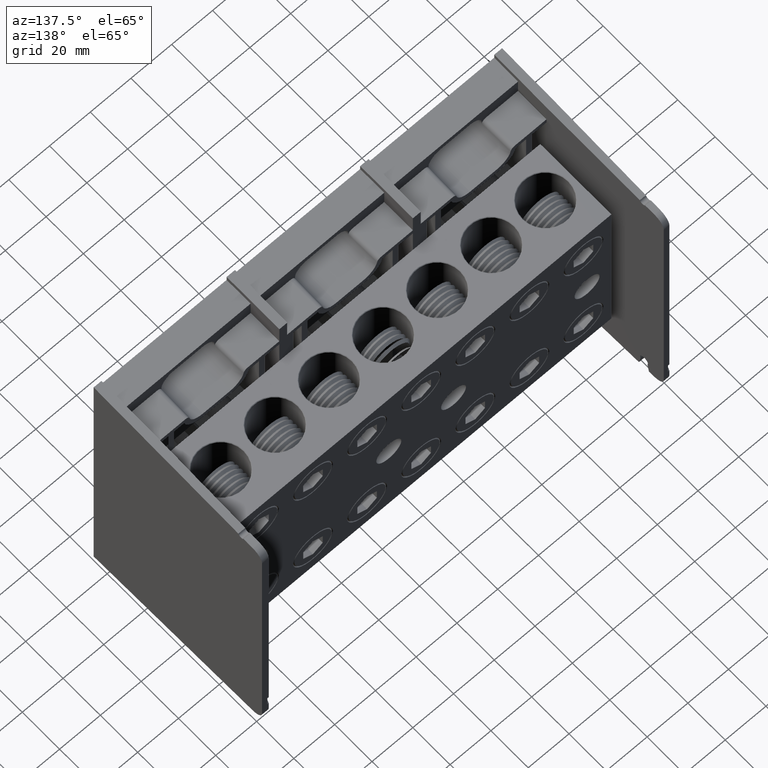
[diagram: clean part render]
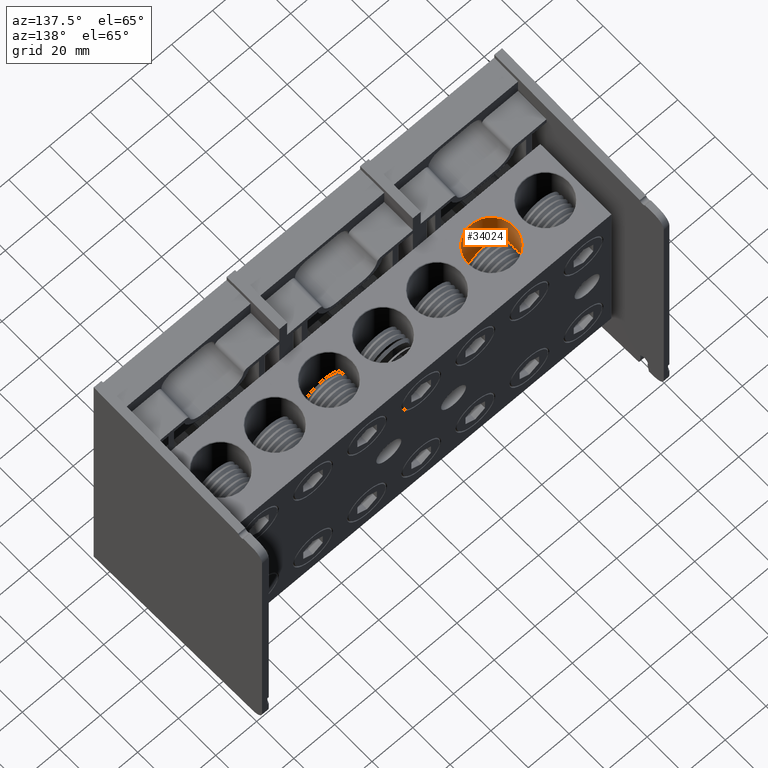
[diagram: same view with one face highlighted and labeled with its STEP entity id]
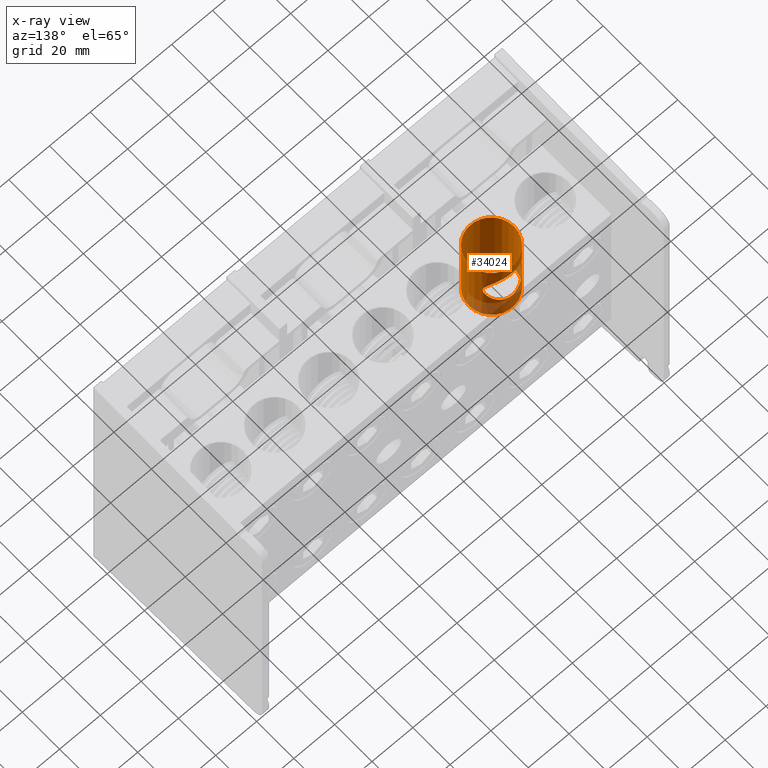
[diagram: x-ray of the same camera — body ghosted, the highlighted face saturated]
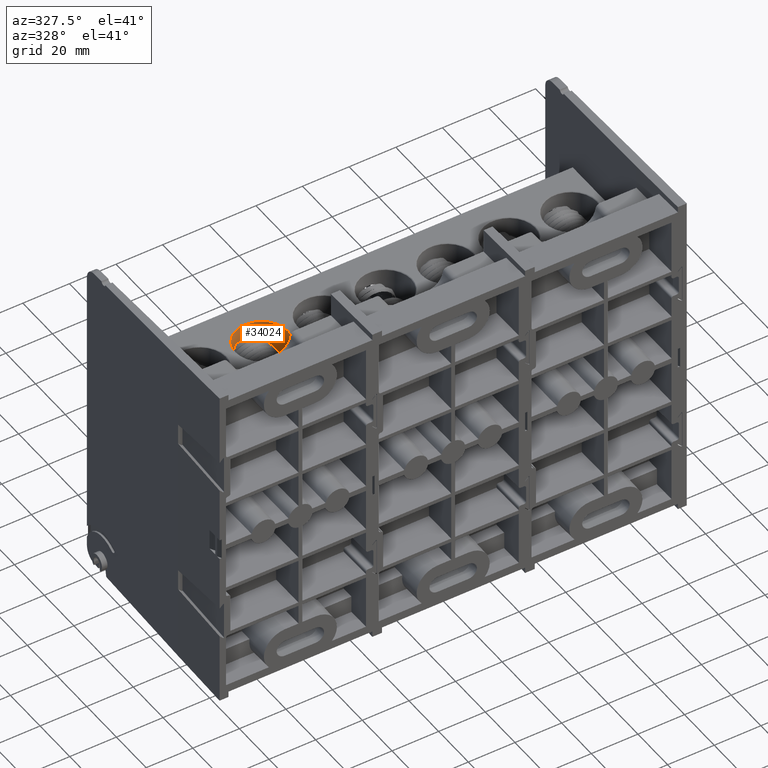
[diagram: same view with one face highlighted and labeled with its STEP entity id]
A machine part, auxiliary view. The second image highlights one B-rep face of the part: STEP entity #34024.
The next image is the same camera in x-ray: the body ghosted, the highlighted face saturated — about 21% of this face is hidden behind the body in this view.
A second angle (auxiliary view) of the same face is appended — the face is thin or edge-on in the first view.
In plain terms, the highlighted cylindrical surface (bore or boss wall) has radius 11.1125 mm, axis along (-0, -0, 1).
Its self-contained STEP definition (entity closure, byte-faithful):
#33 = CARTESIAN_POINT ( 'NONE',  ( -2.389331376845801100, 0.2695920872439236400, 0.8979395298380992200 ) ) ;
#198 = CARTESIAN_POINT ( 'NONE',  ( -2.037715055476735600, 0.3845641039247467100, 0.7534287175712405200 ) ) ;
#351 = CARTESIAN_POINT ( 'NONE',  ( -1.790808634209834200, 0.2697235146409172100, 0.8977554706243502400 ) ) ;
#514 = CARTESIAN_POINT ( 'NONE',  ( -1.715161894442867900, 0.1756171255738094800, 1.112143749815142100 ) ) ;
#695 = CARTESIAN_POINT ( 'NONE',  ( -1.765326345514808900, 0.2438050465793106200, 1.314039281599003000 ) ) ;
#864 = CARTESIAN_POINT ( 'NONE',  ( -2.037137127213790600, 0.3850771150379628200, 1.497181572422094700 ) ) ;
#1826 = ORIENTED_EDGE ( 'NONE', *, *, #3418, .T. ) ;
#1882 = VERTEX_POINT ( 'NONE', #5200 ) ;
#3418 = EDGE_CURVE ( 'NONE', #13248, #13248, #7532, .T. ) ;
#3505 = CARTESIAN_POINT ( 'NONE',  ( -2.193344992262282300, 0.3753070542816371300, 1.485706659266596600 ) ) ;
#3676 = CARTESIAN_POINT ( 'NONE',  ( -2.439458805737267300, 0.2133272529546778000, 1.261535733149762800 ) ) ;
#3852 = CARTESIAN_POINT ( 'NONE',  ( -2.463651970539551400, 0.1775788901962030700, 1.092563035103416300 ) ) ;
#4011 = CARTESIAN_POINT ( 'NONE',  ( -2.342636266918343600, 0.3077718157072998900, 0.8469046347934616700 ) ) ;
#4186 = CARTESIAN_POINT ( 'NONE',  ( -1.999157013957497200, 0.3781599232062903800, 0.7609372561897562700 ) ) ;
#4256 = DIRECTION ( 'NONE',  ( -0.0000000000000000000, -0.0000000000000000000, 1.000000000000000000 ) ) ;
#4355 = CARTESIAN_POINT ( 'NONE',  ( -1.765638386792801600, 0.2437112417470014800, 0.9364554809962568600 ) ) ;
#4543 = CARTESIAN_POINT ( 'NONE',  ( -1.715011394661786900, 0.1753659165538896700, 1.138479739070709800 ) ) ;
#4705 = CARTESIAN_POINT ( 'NONE',  ( -1.791164164492028600, 0.2696844793220157200, 1.351837736218503700 ) ) ;
#4876 = CARTESIAN_POINT ( 'NONE',  ( -2.089999999999999900, 0.3874999999999992300, 1.499999999999999600 ) ) ;
#5200 = CARTESIAN_POINT ( 'NONE',  ( -2.089999999999999900, 0.3874999999999990700, 1.499999999999999600 ) ) ;
#6915 = AXIS2_PLACEMENT_3D ( 'NONE', #8147, #47687, #20248 ) ;
#7515 = CARTESIAN_POINT ( 'NONE',  ( -2.229538050842922100, 0.3648293523770715400, 1.473295471405424100 ) ) ;
#7532 = CIRCLE ( 'NONE', #33893, 0.4374999999999998900 ) ;
#7620 = CARTESIAN_POINT ( 'NONE',  ( -2.089999999999999900, -0.05000000000000069700, 1.740000000000000000 ) ) ;
#7700 = CARTESIAN_POINT ( 'NONE',  ( -2.451061844502575600, 0.1971470518213986600, 1.227020391970888400 ) ) ;
#7867 = CARTESIAN_POINT ( 'NONE',  ( -2.459600320998272000, 0.1841464969324405900, 1.060345140395238600 ) ) ;
#8037 = CARTESIAN_POINT ( 'NONE',  ( -2.285427863006549700, 0.3420697609575753000, 0.8040592283418155400 ) ) ;
#8147 = CARTESIAN_POINT ( 'NONE',  ( -2.089999999999999900, -0.05000000000000069700, 1.750000000000000000 ) ) ;
#8204 = CARTESIAN_POINT ( 'NONE',  ( -1.962431042504331200, 0.3686777753126231300, 0.7721342541536365700 ) ) ;
#8365 = CARTESIAN_POINT ( 'NONE',  ( -1.749549113547781400, 0.2248737027409652700, 0.9673405452712883200 ) ) ;
#8540 = CARTESIAN_POINT ( 'NONE',  ( -1.717785916737408800, 0.1799231863961937300, 1.171092503422334300 ) ) ;
#8714 = CARTESIAN_POINT ( 'NONE',  ( -1.813390021637879300, 0.2891131149295381700, 1.378467248409576800 ) ) ;
#9028 = EDGE_LOOP ( 'NONE', ( #11803 ) ) ;
#11488 = CARTESIAN_POINT ( 'NONE',  ( -2.263421795308145700, 0.3518335387806988400, 1.457717089709483500 ) ) ;
#11584 = DIRECTION ( 'NONE',  ( 1.000000000000000000, 0.0000000000000000000, 0.0000000000000000000 ) ) ;
#11660 = CARTESIAN_POINT ( 'NONE',  ( -2.458147750855101500, 0.1863878548930384700, 1.196636593041989300 ) ) ;
#11803 = ORIENTED_EDGE ( 'NONE', *, *, #24256, .F. ) ;
#11845 = CARTESIAN_POINT ( 'NONE',  ( -2.451209634243868500, 0.1969296987406157200, 1.023509807175804600 ) ) ;
#12026 = CARTESIAN_POINT ( 'NONE',  ( -2.218170549249500300, 0.3690257423744706100, 0.7716836437792058400 ) ) ;
#12196 = CARTESIAN_POINT ( 'NONE',  ( -1.915932257315467600, 0.3521312636483355800, 0.7918945100368871600 ) ) ;
#12361 = CARTESIAN_POINT ( 'NONE',  ( -1.736186809628406500, 0.2074162174776728900, 1.000143044219067700 ) ) ;
#12548 = CARTESIAN_POINT ( 'NONE',  ( -1.720674244821892400, 0.1845385822359724700, 1.190306155644407900 ) ) ;
#12718 = CARTESIAN_POINT ( 'NONE',  ( -1.855294768986912600, 0.3198925545788353100, 1.418435703748320800 ) ) ;
#13248 = VERTEX_POINT ( 'NONE', #26155 ) ;
#14033 = B_SPLINE_CURVE_WITH_KNOTS ( 'NONE', 3,
 ( #15145, #46909, #50869, #27167, #3505, #31172, #7515, #35129, #11488, #39135, #15474, #43084, #19448, #47084, #23382, #51036, #27358, #3676, #31331, #7700, #35302, #11660, #39295, #15654, #43262, #19623, #47254, #23550, #51219, #27517, #3852, #31493, #7867, #35486, #11845, #39454, #15814, #43441, #19790, #47406, #23730, #33, #27681, #4011, #31670, #8037, #35646, #12026, #39637, #15974, #43610, #19975, #47569, #23899, #198, #27865, #4186, #31838, #8204, #35830, #12196, #39810, #16147, #43780, #20140, #47747, #24069, #351, #28048, #4355, #31996, #8365, #36010, #12361, #39965, #16314, #43955, #20306, #47908, #24242, #514, #28218, #4543, #32179, #8540, #36183, #12548, #40129, #16478, #44144, #20472, #48073, #24417, #695, #28380, #4705, #32352, #8714, #36351, #12718, #40309, #16650, #44310, #20651, #48253, #24595, #864, #28572, #4876 ),
 .UNSPECIFIED., .T., .F.,
 ( 4, 2, 2, 2, 2, 2, 2, 2, 2, 2, 2, 2, 2, 2, 2, 2, 2, 2, 2, 2, 2, 2, 2, 2, 2, 2, 1, 2, 2, 2, 2, 2, 2, 2, 2, 2, 2, 2, 2, 2, 2, 2, 2, 2, 2, 2, 2, 2, 2, 2, 2, 2, 2, 2, 4 ),
 ( 0.0000000000000000000, 0.001999222198349539200, 0.002998833297524298800, 0.003998444396699058500, 0.004998055495873817200, 0.005997666595048576800, 0.007996888793398068300, 0.009996110991747561600, 0.01199533319009705500, 0.01299494428927179500, 0.01399455538844653800, 0.01449436093803390700, 0.01499416648762127600, 0.01599377758679602600, 0.01649358313638339300, 0.01699338868597075800, 0.01799299978514550700, 0.01899261088432025200, 0.01999222198349500200, 0.02099183308266975400, 0.02199144418184450000, 0.02399066638019399200, 0.02598988857854348700, 0.02798911077689297800, 0.02998833297524247300, 0.03098794407441721900, 0.03198755517359196100, 0.03298716627276671700, 0.03398677737194146000, 0.03498638847111620900, 0.03598599957029095100, 0.03798522176864044300, 0.03898483286781517800, 0.03998444396698991300, 0.04198366616533939100, 0.04298327726451413300, 0.04398288836368887500, 0.04498249946286361100, 0.04598211056203835300, 0.04698172166121309500, 0.04748152721080047000, 0.04798133276038783800, 0.04898094385956257300, 0.04948074940914993400, 0.04998055495873730100, 0.05098016605791201600, 0.05197977715708671600, 0.05397899935543611800, 0.05497861045461081100, 0.05597822155378549800, 0.05797744375213491300, 0.05897705485130961400, 0.05997666595048432200, 0.06197588814883375800, 0.06397511034718318700 ),
 .UNSPECIFIED. ) ;
#15145 = CARTESIAN_POINT ( 'NONE',  ( -2.089999999999999900, 0.3874999999999992300, 1.499999999999999600 ) ) ;
#15153 = FACE_OUTER_BOUND ( 'NONE', #43676, .T. ) ;
#15474 = CARTESIAN_POINT ( 'NONE',  ( -2.295158682768156000, 0.3365784639919481800, 1.439130731211394100 ) ) ;
#15654 = CARTESIAN_POINT ( 'NONE',  ( -2.461339188496577200, 0.1813375937477100000, 1.177665833657913300 ) ) ;
#15814 = CARTESIAN_POINT ( 'NONE',  ( -2.439739280510305500, 0.2129536485259219100, 0.9891854557265773500 ) ) ;
#15974 = CARTESIAN_POINT ( 'NONE',  ( -2.155798454912353900, 0.3827161714596702400, 0.7555895796650737900 ) ) ;
#16029 = EDGE_LOOP ( 'NONE', ( #41480 ) ) ;
#16147 = CARTESIAN_POINT ( 'NONE',  ( -1.865152132912689900, 0.3254699008123167500, 0.8246451779566297300 ) ) ;
#16314 = CARTESIAN_POINT ( 'NONE',  ( -1.725632452747105600, 0.1922091734445946200, 1.035443797189253400 ) ) ;
#16478 = CARTESIAN_POINT ( 'NONE',  ( -1.725737471049459700, 0.1923672023799392300, 1.214974997304022500 ) ) ;
#16650 = CARTESIAN_POINT ( 'NONE',  ( -1.894713235661860800, 0.3416742311980542900, 1.445373651852919200 ) ) ;
#19448 = CARTESIAN_POINT ( 'NONE',  ( -2.342302806205916400, 0.3080043940187389700, 1.403392411600669700 ) ) ;
#19623 = CARTESIAN_POINT ( 'NONE',  ( -2.464277089223112500, 0.1765610047124309700, 1.151687116307874300 ) ) ;
#19790 = CARTESIAN_POINT ( 'NONE',  ( -2.425496592072505100, 0.2309246982330117000, 0.9570668967022287800 ) ) ;
#19792 = CIRCLE ( 'NONE', #22130, 0.4374999999999996100 ) ;
#19975 = CARTESIAN_POINT ( 'NONE',  ( -2.116441561395460400, 0.3868992167350021000, 0.7507003969914423100 ) ) ;
#20140 = CARTESIAN_POINT ( 'NONE',  ( -1.837762155074669700, 0.3076288535950465500, 0.8472599623478833700 ) ) ;
#20248 = DIRECTION ( 'NONE',  ( 1.000000000000000000, 0.0000000000000000000, 0.0000000000000000000 ) ) ;
#20306 = CARTESIAN_POINT ( 'NONE',  ( -1.718426114564973500, 0.1809674181344324600, 1.072760648989846200 ) ) ;
#20472 = CARTESIAN_POINT ( 'NONE',  ( -1.736252726711269100, 0.2075068925526654400, 1.250042686572072600 ) ) ;
#20651 = CARTESIAN_POINT ( 'NONE',  ( -1.927279963010125400, 0.3562965667617196100, 1.463087720872719800 ) ) ;
#22130 = AXIS2_PLACEMENT_3D ( 'NONE', #27943, #4256, #31910 ) ;
#23382 = CARTESIAN_POINT ( 'NONE',  ( -2.389181484745793100, 0.2697276937287835800, 1.352245534106070400 ) ) ;
#23550 = CARTESIAN_POINT ( 'NONE',  ( -2.465008745113009200, 0.1753324020227605400, 1.118962228155552000 ) ) ;
#23730 = CARTESIAN_POINT ( 'NONE',  ( -2.408488224191401600, 0.2500908735695563900, 0.9266998900150489300 ) ) ;
#23899 = CARTESIAN_POINT ( 'NONE',  ( -2.063947537292718500, 0.3869221269638384900, 0.7506736683902141000 ) ) ;
#24069 = CARTESIAN_POINT ( 'NONE',  ( -1.805162983060226300, 0.2827003171950173700, 0.8800007551800095300 ) ) ;
#24242 = CARTESIAN_POINT ( 'NONE',  ( -1.715849894332208700, 0.1767562373092044800, 1.098911938070147500 ) ) ;
#24256 = EDGE_CURVE ( 'NONE', #29761, #29761, #19792, .T. ) ;
#24417 = CARTESIAN_POINT ( 'NONE',  ( -1.754360271161217000, 0.2310316781058959200, 1.293901054698121100 ) ) ;
#24595 = CARTESIAN_POINT ( 'NONE',  ( -1.985817973677759300, 0.3757143229213221700, 1.486192070180375700 ) ) ;
#25647 = FACE_BOUND ( 'NONE', #16029, .T. ) ;
#26155 = CARTESIAN_POINT ( 'NONE',  ( -1.652499999999999900, -0.05000000000000069700, 1.740000000000000000 ) ) ;
#27167 = CARTESIAN_POINT ( 'NONE',  ( -2.180732228952674500, 0.3781823194997352400, 1.489089061987110900 ) ) ;
#27358 = CARTESIAN_POINT ( 'NONE',  ( -2.425587226868481500, 0.2310929728517244800, 1.293997238140048400 ) ) ;
#27517 = CARTESIAN_POINT ( 'NONE',  ( -2.464169826124869500, 0.1767236619221932100, 1.099202458031055800 ) ) ;
#27681 = CARTESIAN_POINT ( 'NONE',  ( -2.374956640693969900, 0.2826040715345229900, 0.8801289554965674400 ) ) ;
#27865 = CARTESIAN_POINT ( 'NONE',  ( -2.024596287687726800, 0.3827767581200591800, 0.7555186283998406300 ) ) ;
#27943 = CARTESIAN_POINT ( 'NONE',  ( -2.089999999999999900, -0.05000000000000069700, 0.3279999999999999000 ) ) ;
#28048 = CARTESIAN_POINT ( 'NONE',  ( -1.771637053906678600, 0.2502238695527256900, 0.9264989372108617400 ) ) ;
#28218 = CARTESIAN_POINT ( 'NONE',  ( -1.714994508509309000, 0.1753378163363699100, 1.118741347864462600 ) ) ;
#28380 = CARTESIAN_POINT ( 'NONE',  ( -1.784375963521058800, 0.2631808305985192100, 1.342600336172483400 ) ) ;
#28572 = CARTESIAN_POINT ( 'NONE',  ( -2.063316980800314200, 0.3874999999999992900, 1.500000000000000400 ) ) ;
#29761 = VERTEX_POINT ( 'NONE', #43740 ) ;
#31172 = CARTESIAN_POINT ( 'NONE',  ( -2.217747094824598500, 0.3686250800075044900, 1.477803289708068000 ) ) ;
#31331 = CARTESIAN_POINT ( 'NONE',  ( -2.443667894015628200, 0.2076166561427293100, 1.250271052825647100 ) ) ;
#31493 = CARTESIAN_POINT ( 'NONE',  ( -2.461609542479998900, 0.1809099030832344900, 1.073008125086941900 ) ) ;
#31670 = CARTESIAN_POINT ( 'NONE',  ( -2.324551846258732500, 0.3199948357926873400, 0.8314349135737048000 ) ) ;
#31838 = CARTESIAN_POINT ( 'NONE',  ( -1.986731284230559600, 0.3753239833357503400, 0.7642734472601546700 ) ) ;
#31910 = DIRECTION ( 'NONE',  ( 1.000000000000000000, 0.0000000000000000000, 0.0000000000000000000 ) ) ;
#31996 = CARTESIAN_POINT ( 'NONE',  ( -1.754607702989895000, 0.2310493849081103900, 0.9568586937275236300 ) ) ;
#32179 = CARTESIAN_POINT ( 'NONE',  ( -1.715713181208972500, 0.1765449380711349400, 1.151565915799944300 ) ) ;
#32352 = CARTESIAN_POINT ( 'NONE',  ( -1.805679982052513300, 0.2826607134866947500, 1.369786320187269100 ) ) ;
#33893 = AXIS2_PLACEMENT_3D ( 'NONE', #7620, #35226, #11584 ) ;
#34024 = ADVANCED_FACE ( 'NONE', ( #15153, #36155, #25647 ), #49713, .F. ) ;
#35129 = CARTESIAN_POINT ( 'NONE',  ( -2.252375557010425100, 0.3564338048344112300, 1.463252541040155600 ) ) ;
#35140 = EDGE_CURVE ( 'NONE', #1882, #1882, #14033, .T. ) ;
#35226 = DIRECTION ( 'NONE',  ( 0.0000000000000000000, 0.0000000000000000000, 1.000000000000000000 ) ) ;
#35302 = CARTESIAN_POINT ( 'NONE',  ( -2.454233165534243500, 0.1924116101330879100, 1.215097018897635800 ) ) ;
#35486 = CARTESIAN_POINT ( 'NONE',  ( -2.454410074083902800, 0.1921451573208185800, 1.035613501809825800 ) ) ;
#35646 = CARTESIAN_POINT ( 'NONE',  ( -2.264293814161318300, 0.3520347358282557300, 0.7920108055609634800 ) ) ;
#35830 = CARTESIAN_POINT ( 'NONE',  ( -1.950498796527411000, 0.3648450129763795600, 0.7766856651651952200 ) ) ;
#36010 = CARTESIAN_POINT ( 'NONE',  ( -1.740339028000762900, 0.2130580985356249900, 0.9889834039096527800 ) ) ;
#36155 = FACE_OUTER_BOUND ( 'NONE', #9028, .T. ) ;
#36183 = CARTESIAN_POINT ( 'NONE',  ( -1.718651080486797800, 0.1813219400997596300, 1.177596457858950400 ) ) ;
#36351 = CARTESIAN_POINT ( 'NONE',  ( -1.837604880883924300, 0.3079400693317406700, 1.403310273668874300 ) ) ;
#39135 = CARTESIAN_POINT ( 'NONE',  ( -2.284816447920509800, 0.3419079784803497100, 1.445659215511239800 ) ) ;
#39295 = CARTESIAN_POINT ( 'NONE',  ( -2.459311604342431200, 0.1845608963410064800, 1.190386710012042200 ) ) ;
#39454 = CARTESIAN_POINT ( 'NONE',  ( -2.443881394188437200, 0.2073220449902553300, 1.000337985106416000 ) ) ;
#39637 = CARTESIAN_POINT ( 'NONE',  ( -2.193877588571953900, 0.3757717504000823700, 0.7637404978744554200 ) ) ;
#39810 = CARTESIAN_POINT ( 'NONE',  ( -1.894707591062698500, 0.3421466103517443700, 0.8039638574161235300 ) ) ;
#39965 = CARTESIAN_POINT ( 'NONE',  ( -1.728837475631557000, 0.1969990155714216600, 1.023340450130740400 ) ) ;
#40129 = CARTESIAN_POINT ( 'NONE',  ( -1.721835112259985300, 0.1863610916206652200, 1.196547452573154800 ) ) ;
#40309 = CARTESIAN_POINT ( 'NONE',  ( -1.884519917640722600, 0.3364057260226159300, 1.438917903564641100 ) ) ;
#41480 = ORIENTED_EDGE ( 'NONE', *, *, #35140, .F. ) ;
#43084 = CARTESIAN_POINT ( 'NONE',  ( -2.324574788496964300, 0.3199836406542359600, 1.418551484799322400 ) ) ;
#43262 = CARTESIAN_POINT ( 'NONE',  ( -2.462204705339301000, 0.1799383654736473300, 1.171165926253285400 ) ) ;
#43441 = CARTESIAN_POINT ( 'NONE',  ( -2.430547231343342900, 0.2247540151287041600, 0.9675492521692966600 ) ) ;
#43610 = CARTESIAN_POINT ( 'NONE',  ( -2.142703129938991600, 0.3845140617322869700, 0.7534872287286171800 ) ) ;
#43676 = EDGE_LOOP ( 'NONE', ( #1826 ) ) ;
#43740 = CARTESIAN_POINT ( 'NONE',  ( -1.652500000000000300, -0.05000000000000069700, 0.3279999999999999000 ) ) ;
#43780 = CARTESIAN_POINT ( 'NONE',  ( -1.855671239552528100, 0.3196110920459959100, 0.8319923363549587300 ) ) ;
#43955 = CARTESIAN_POINT ( 'NONE',  ( -1.720439242113118900, 0.1842089652892859600, 1.060124201869696600 ) ) ;
#44144 = CARTESIAN_POINT ( 'NONE',  ( -1.728896262551259200, 0.1970850539225169900, 1.226867058585809200 ) ) ;
#44310 = CARTESIAN_POINT ( 'NONE',  ( -1.916120215835700200, 0.3516359600051061100, 1.457478597485931000 ) ) ;
#46909 = CARTESIAN_POINT ( 'NONE',  ( -2.116683019199686800, 0.3874999999999991200, 1.499999999999998700 ) ) ;
#47084 = CARTESIAN_POINT ( 'NONE',  ( -2.374575732476518200, 0.2829271761835575000, 1.370307344654965200 ) ) ;
#47254 = CARTESIAN_POINT ( 'NONE',  ( -2.464981425270861100, 0.1753778648229746300, 1.138637635504613700 ) ) ;
#47406 = CARTESIAN_POINT ( 'NONE',  ( -2.414478630176072600, 0.2435817908669277700, 0.9366569379176823400 ) ) ;
#47569 = CARTESIAN_POINT ( 'NONE',  ( -2.090187331234989000, 0.3880892448175583500, 0.7493130645310298600 ) ) ;
#47687 = DIRECTION ( 'NONE',  ( -0.0000000000000000000, -0.0000000000000000000, 1.000000000000000000 ) ) ;
#47747 = CARTESIAN_POINT ( 'NONE',  ( -1.829285952061550300, 0.3014801267891981700, 0.8552109634308198100 ) ) ;
#47908 = CARTESIAN_POINT ( 'NONE',  ( -1.716373479122105500, 0.1776207054310350000, 1.092273887650817800 ) ) ;
#48073 = CARTESIAN_POINT ( 'NONE',  ( -1.740468928740056800, 0.2132316957404117600, 1.261353139630715800 ) ) ;
#48253 = CARTESIAN_POINT ( 'NONE',  ( -1.961578254045254200, 0.3689366868243026400, 1.478210029497352400 ) ) ;
#49713 = CYLINDRICAL_SURFACE ( 'NONE', #6915, 0.4374999999999998900 ) ;
#50869 = CARTESIAN_POINT ( 'NONE',  ( -2.142678641156947200, 0.3850815500310667000, 1.497186365257189100 ) ) ;
#51036 = CARTESIAN_POINT ( 'NONE',  ( -2.414624531778859900, 0.2438609744746328100, 1.314126959879355500 ) ) ;
#51219 = CARTESIAN_POINT ( 'NONE',  ( -2.464845945396536600, 0.1756040666244776900, 1.112386944314235100 ) ) ;